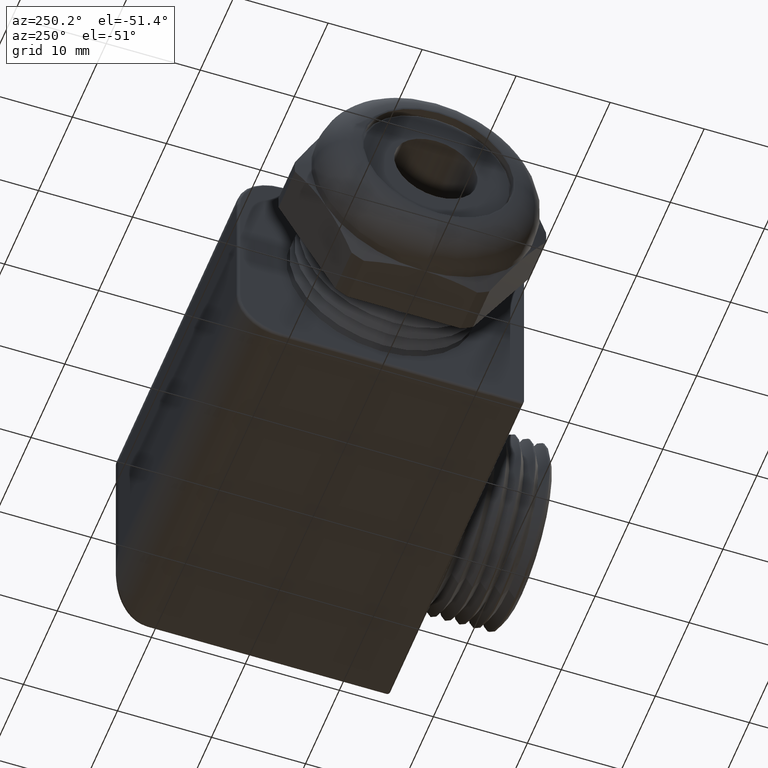
[diagram: clean part render]
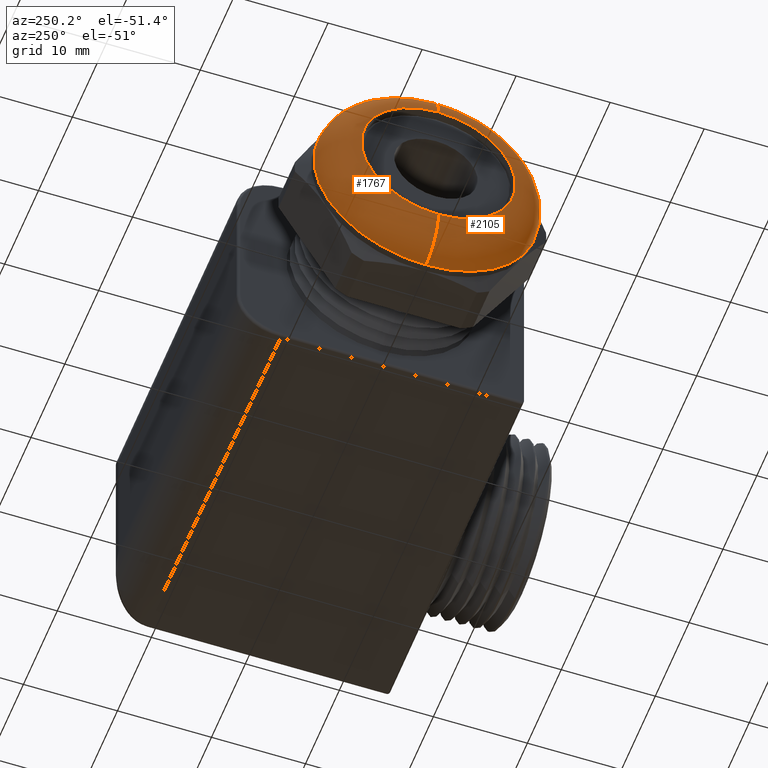
[diagram: same view with one multi-face feature highlighted, each face labeled with its STEP entity id]
A machine part, auxiliary view. The highlighted faces form ONE feature: a constant-radius fillet chain: 2 tangent blend faces with common blend radius 3.7298 mm. The faces share edges in the B-rep.
Their STEP definitions:
[1] entity #2105 (Torus):
#1610 = VERTEX_POINT ( 'NONE', #3165 ) ;
#1611 = VERTEX_POINT ( 'NONE', #3164 ) ;
#1695 = EDGE_CURVE ( 'NONE', #1709, #1610, #3511, .T. ) ;
#1707 = VERTEX_POINT ( 'NONE', #3380 ) ;
#1708 = EDGE_CURVE ( 'NONE', #1707, #1611, #3379, .T. ) ;
#1709 = VERTEX_POINT ( 'NONE', #3374 ) ;
#1989 = EDGE_CURVE ( 'NONE', #1611, #1610, #3943, .T. ) ;
#2094 = EDGE_LOOP ( 'NONE', ( #2104, #2124, #2095, #2096 ) ) ;
#2095 = ORIENTED_EDGE ( 'NONE', *, *, #1695, .T. ) ;
#2096 = ORIENTED_EDGE ( 'NONE', *, *, #1989, .F. ) ;
#2104 = ORIENTED_EDGE ( 'NONE', *, *, #1708, .F. ) ;
#2105 = ADVANCED_FACE ( 'NONE', ( #4198 ), #4319, .T. ) ;
#2124 = ORIENTED_EDGE ( 'NONE', *, *, #2126, .F. ) ;
#2126 = EDGE_CURVE ( 'NONE', #1709, #1707, #4303, .T. ) ;
#3164 = CARTESIAN_POINT ( 'NONE',  ( -0.5251578947368421600, 0.0000000000000000000, 0.4699999999999997500 ) ) ;
#3165 = CARTESIAN_POINT ( 'NONE',  ( -0.5251578947368421600, 5.755839955992557200E-017, -0.4699999999999997500 ) ) ;
#3374 = CARTESIAN_POINT ( 'NONE',  ( -0.6720000000000001500, 0.0000000000000000000, -0.3231578947368418700 ) ) ;
#3375 = DIRECTION ( 'NONE',  ( 0.0000000000000000000, 1.224646799147353200E-016, 1.000000000000000000 ) ) ;
#3376 = DIRECTION ( 'NONE',  ( 0.0000000000000000000, 1.000000000000000000, -1.224646799147353200E-016 ) ) ;
#3377 = CARTESIAN_POINT ( 'NONE',  ( -0.5251578947368421600, 3.957542814086706600E-017, 0.3231578947368418700 ) ) ;
#3378 = AXIS2_PLACEMENT_3D ( 'NONE', #3377, #3376, #3375 ) ;
#3379 = CIRCLE ( 'NONE', #3378, 0.1468421052631579100 ) ;
#3380 = CARTESIAN_POINT ( 'NONE',  ( -0.6720000000000001500, 4.856691385039631900E-017, 0.3231578947368418700 ) ) ;
#3468 = DIRECTION ( 'NONE',  ( 0.0000000000000000000, 0.0000000000000000000, -1.000000000000000000 ) ) ;
#3469 = DIRECTION ( 'NONE',  ( 0.0000000000000000000, -1.000000000000000000, 0.0000000000000000000 ) ) ;
#3509 = CARTESIAN_POINT ( 'NONE',  ( -0.5251578947368421600, 0.0000000000000000000, -0.3231578947368418700 ) ) ;
#3510 = AXIS2_PLACEMENT_3D ( 'NONE', #3509, #3469, #3468 ) ;
#3511 = CIRCLE ( 'NONE', #3510, 0.1468421052631579100 ) ;
#3939 = DIRECTION ( 'NONE',  ( 0.0000000000000000000, 0.0000000000000000000, -1.000000000000000000 ) ) ;
#3940 = DIRECTION ( 'NONE',  ( 1.000000000000000000, 0.0000000000000000000, 0.0000000000000000000 ) ) ;
#3941 = CARTESIAN_POINT ( 'NONE',  ( -0.5251578947368421600, 0.0000000000000000000, 0.0000000000000000000 ) ) ;
#3942 = AXIS2_PLACEMENT_3D ( 'NONE', #3941, #3940, #3939 ) ;
#3943 = CIRCLE ( 'NONE', #3942, 0.4699999999999997500 ) ;
#4198 = FACE_OUTER_BOUND ( 'NONE', #2094, .T. ) ;
#4281 = DIRECTION ( 'NONE',  ( 0.0000000000000000000, 0.0000000000000000000, -1.000000000000000000 ) ) ;
#4282 = DIRECTION ( 'NONE',  ( -1.000000000000000000, 0.0000000000000000000, 0.0000000000000000000 ) ) ;
#4284 = DIRECTION ( 'NONE',  ( 0.0000000000000000000, 0.0000000000000000000, -1.000000000000000000 ) ) ;
#4285 = DIRECTION ( 'NONE',  ( 1.000000000000000000, 0.0000000000000000000, 0.0000000000000000000 ) ) ;
#4286 = AXIS2_PLACEMENT_3D ( 'NONE', #4321, #4285, #4284 ) ;
#4302 = AXIS2_PLACEMENT_3D ( 'NONE', #4309, #4282, #4281 ) ;
#4303 = CIRCLE ( 'NONE', #4302, 0.3231578947368418700 ) ;
#4309 = CARTESIAN_POINT ( 'NONE',  ( -0.6720000000000001500, 0.0000000000000000000, 0.0000000000000000000 ) ) ;
#4319 = TOROIDAL_SURFACE ( 'NONE', #4286, 0.3231578947368418700, 0.1468421052631579100 ) ;
#4321 = CARTESIAN_POINT ( 'NONE',  ( -0.5251578947368421600, 0.0000000000000000000, 0.0000000000000000000 ) ) ;
[2] entity #1767 (Torus):
#1608 = ORIENTED_EDGE ( 'NONE', *, *, #1609, .F. ) ;
#1609 = EDGE_CURVE ( 'NONE', #1610, #1611, #3170, .T. ) ;
#1610 = VERTEX_POINT ( 'NONE', #3165 ) ;
#1611 = VERTEX_POINT ( 'NONE', #3164 ) ;
#1673 = EDGE_CURVE ( 'NONE', #1707, #1709, #3456, .T. ) ;
#1681 = ORIENTED_EDGE ( 'NONE', *, *, #1673, .F. ) ;
#1683 = EDGE_LOOP ( 'NONE', ( #1681, #1710, #1608, #1693 ) ) ;
#1693 = ORIENTED_EDGE ( 'NONE', *, *, #1695, .F. ) ;
#1695 = EDGE_CURVE ( 'NONE', #1709, #1610, #3511, .T. ) ;
#1707 = VERTEX_POINT ( 'NONE', #3380 ) ;
#1708 = EDGE_CURVE ( 'NONE', #1707, #1611, #3379, .T. ) ;
#1709 = VERTEX_POINT ( 'NONE', #3374 ) ;
#1710 = ORIENTED_EDGE ( 'NONE', *, *, #1708, .T. ) ;
#1767 = ADVANCED_FACE ( 'NONE', ( #3703 ), #3702, .T. ) ;
#3164 = CARTESIAN_POINT ( 'NONE',  ( -0.5251578947368421600, 0.0000000000000000000, 0.4699999999999997500 ) ) ;
#3165 = CARTESIAN_POINT ( 'NONE',  ( -0.5251578947368421600, 5.755839955992557200E-017, -0.4699999999999997500 ) ) ;
#3166 = DIRECTION ( 'NONE',  ( 0.0000000000000000000, 0.0000000000000000000, -1.000000000000000000 ) ) ;
#3167 = DIRECTION ( 'NONE',  ( 1.000000000000000000, 0.0000000000000000000, 0.0000000000000000000 ) ) ;
#3168 = CARTESIAN_POINT ( 'NONE',  ( -0.5251578947368421600, 0.0000000000000000000, 0.0000000000000000000 ) ) ;
#3169 = AXIS2_PLACEMENT_3D ( 'NONE', #3168, #3167, #3166 ) ;
#3170 = CIRCLE ( 'NONE', #3169, 0.4699999999999997500 ) ;
#3374 = CARTESIAN_POINT ( 'NONE',  ( -0.6720000000000001500, 0.0000000000000000000, -0.3231578947368418700 ) ) ;
#3375 = DIRECTION ( 'NONE',  ( 0.0000000000000000000, 1.224646799147353200E-016, 1.000000000000000000 ) ) ;
#3376 = DIRECTION ( 'NONE',  ( 0.0000000000000000000, 1.000000000000000000, -1.224646799147353200E-016 ) ) ;
#3377 = CARTESIAN_POINT ( 'NONE',  ( -0.5251578947368421600, 3.957542814086706600E-017, 0.3231578947368418700 ) ) ;
#3378 = AXIS2_PLACEMENT_3D ( 'NONE', #3377, #3376, #3375 ) ;
#3379 = CIRCLE ( 'NONE', #3378, 0.1468421052631579100 ) ;
#3380 = CARTESIAN_POINT ( 'NONE',  ( -0.6720000000000001500, 4.856691385039631900E-017, 0.3231578947368418700 ) ) ;
#3456 = CIRCLE ( 'NONE', #3519, 0.3231578947368418700 ) ;
#3468 = DIRECTION ( 'NONE',  ( 0.0000000000000000000, 0.0000000000000000000, -1.000000000000000000 ) ) ;
#3469 = DIRECTION ( 'NONE',  ( 0.0000000000000000000, -1.000000000000000000, 0.0000000000000000000 ) ) ;
#3484 = DIRECTION ( 'NONE',  ( 0.0000000000000000000, 0.0000000000000000000, -1.000000000000000000 ) ) ;
#3485 = CARTESIAN_POINT ( 'NONE',  ( -0.6720000000000001500, 0.0000000000000000000, 0.0000000000000000000 ) ) ;
#3509 = CARTESIAN_POINT ( 'NONE',  ( -0.5251578947368421600, 0.0000000000000000000, -0.3231578947368418700 ) ) ;
#3510 = AXIS2_PLACEMENT_3D ( 'NONE', #3509, #3469, #3468 ) ;
#3511 = CIRCLE ( 'NONE', #3510, 0.1468421052631579100 ) ;
#3518 = DIRECTION ( 'NONE',  ( -1.000000000000000000, 0.0000000000000000000, 0.0000000000000000000 ) ) ;
#3519 = AXIS2_PLACEMENT_3D ( 'NONE', #3485, #3518, #3484 ) ;
#3698 = DIRECTION ( 'NONE',  ( 0.0000000000000000000, 0.0000000000000000000, -1.000000000000000000 ) ) ;
#3699 = DIRECTION ( 'NONE',  ( 1.000000000000000000, 0.0000000000000000000, 0.0000000000000000000 ) ) ;
#3700 = CARTESIAN_POINT ( 'NONE',  ( -0.5251578947368421600, 0.0000000000000000000, 0.0000000000000000000 ) ) ;
#3701 = AXIS2_PLACEMENT_3D ( 'NONE', #3700, #3699, #3698 ) ;
#3702 = TOROIDAL_SURFACE ( 'NONE', #3701, 0.3231578947368418700, 0.1468421052631579100 ) ;
#3703 = FACE_OUTER_BOUND ( 'NONE', #1683, .T. ) ;